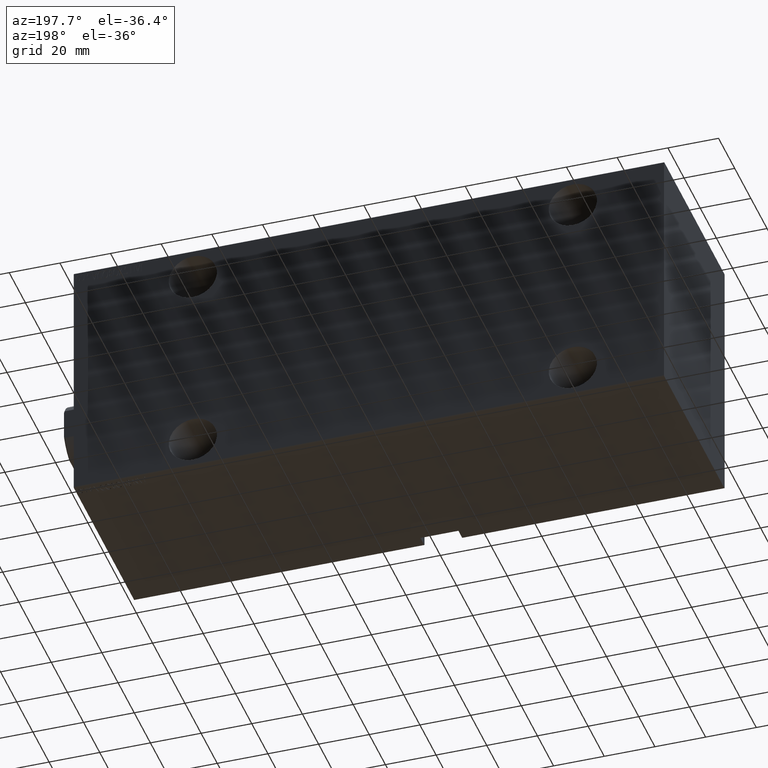
[diagram: clean part render]
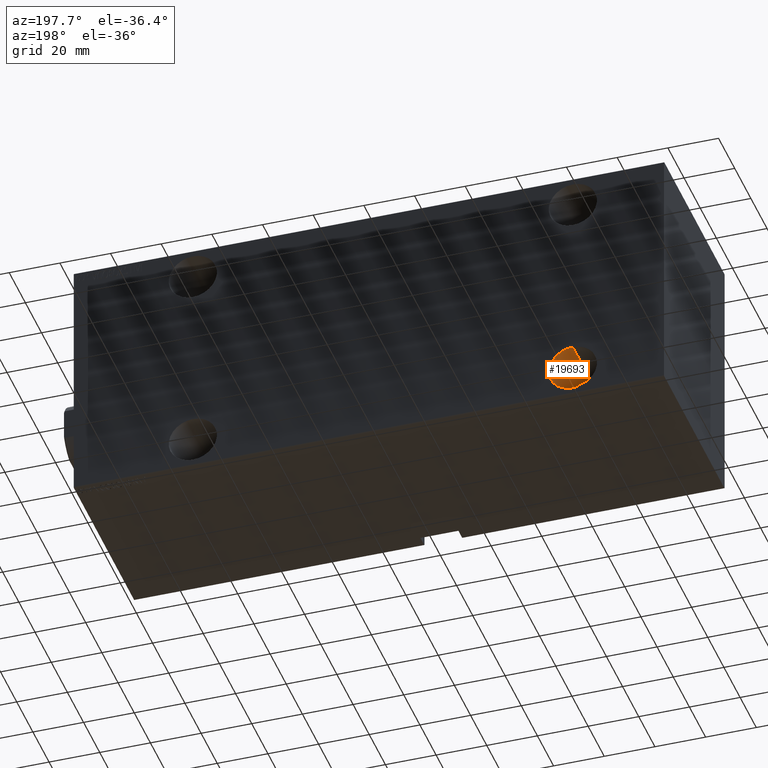
[diagram: same view with one face highlighted and labeled with its STEP entity id]
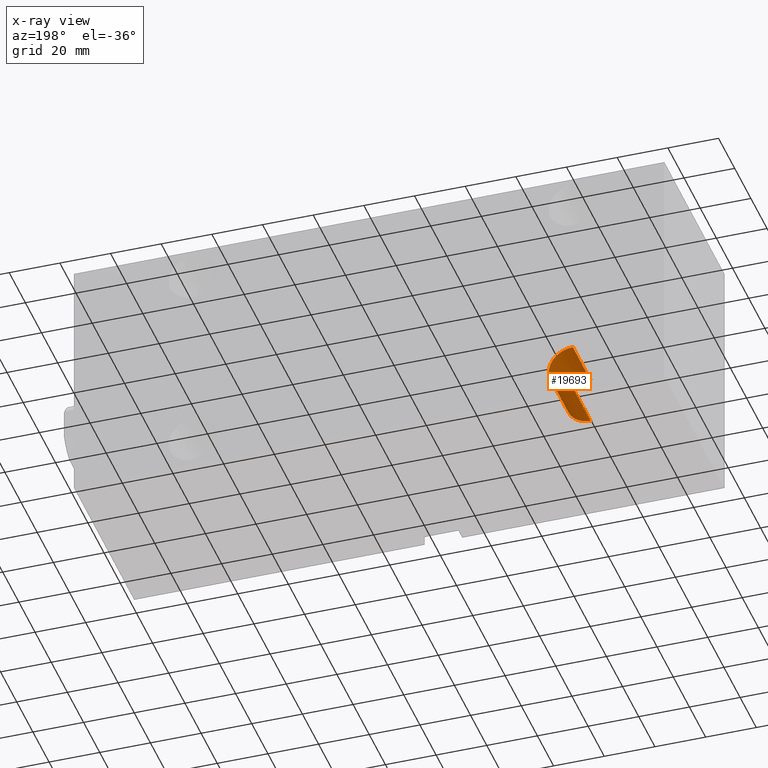
[diagram: x-ray of the same camera — body ghosted, the highlighted face saturated]
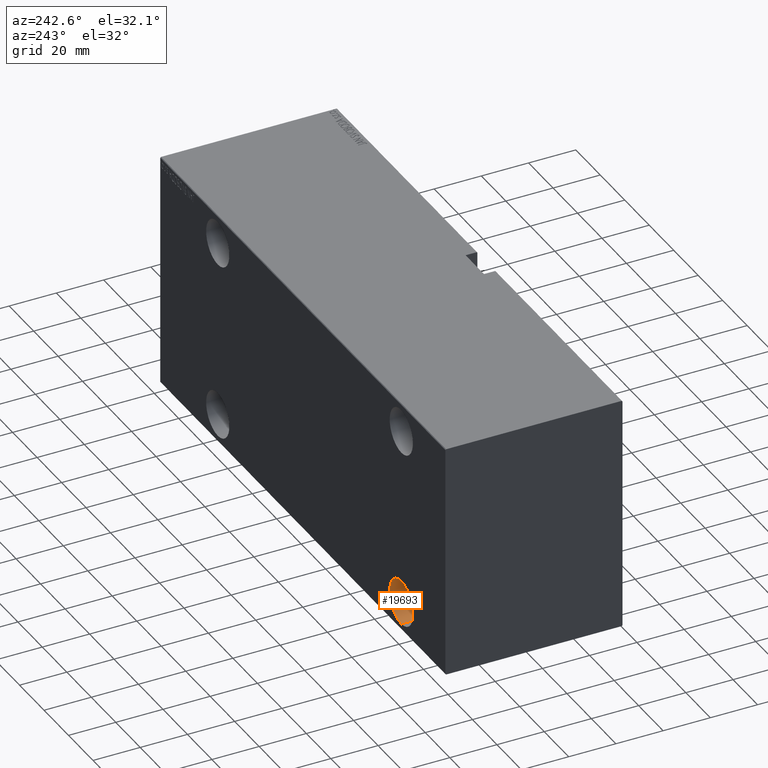
[diagram: same view with one face highlighted and labeled with its STEP entity id]
A machine part, auxiliary view. The second image highlights one B-rep face of the part: STEP entity #19693.
The next image is the same camera in x-ray: the body ghosted, the highlighted face saturated — about 0% of this face is hidden behind the body in this view.
A second angle (auxiliary view) of the same face is appended — the face is thin or edge-on in the first view.
In plain terms, the highlighted cylindrical surface (edge-blend (fillet) strip) has radius 9.5 mm, axis along (0, 1, -0).
Its self-contained STEP definition (entity closure, byte-faithful):
#1493 = VECTOR ( 'NONE', #3848, 1000.000000000000000 ) ;
#1583 = AXIS2_PLACEMENT_3D ( 'NONE', #6476, #19477, #13860 ) ;
#1640 = CARTESIAN_POINT ( 'NONE',  ( 197.0000000000000568, -37.50000000000000000, -28.49999999999999645 ) ) ;
#1989 = ORIENTED_EDGE ( 'NONE', *, *, #26711, .T. ) ;
#2957 = CARTESIAN_POINT ( 'NONE',  ( 197.0000000000000568, -15.50000000000000000, -38.00000000000000711 ) ) ;
#3263 = EDGE_CURVE ( 'NONE', #7591, #5970, #5192, .T. ) ;
#3848 = DIRECTION ( 'NONE',  ( -0.000000000000000000, -1.000000000000000000, -0.000000000000000000 ) ) ;
#5192 = LINE ( 'NONE', #40991, #38104 ) ;
#5970 = VERTEX_POINT ( 'NONE', #1640 ) ;
#5991 = DIRECTION ( 'NONE',  ( 0.000000000000000000, 0.000000000000000000, -1.000000000000000000 ) ) ;
#6406 = DIRECTION ( 'NONE',  ( -0.000000000000000000, -1.000000000000000000, -0.000000000000000000 ) ) ;
#6445 = CARTESIAN_POINT ( 'NONE',  ( 197.0000000000000568, -15.50000000000000000, -47.50000000000001421 ) ) ;
#6476 = CARTESIAN_POINT ( 'NONE',  ( 197.0000000000000568, -37.50000000000000000, -38.00000000000000711 ) ) ;
#6765 = CARTESIAN_POINT ( 'NONE',  ( 197.0000000000000568, -37.50000000000000000, -47.50000000000001421 ) ) ;
#7591 = VERTEX_POINT ( 'NONE', #36207 ) ;
#9188 = CIRCLE ( 'NONE', #1583, 9.500000000000008882 ) ;
#9450 = CARTESIAN_POINT ( 'NONE',  ( 197.0000000000000568, -15.50000000000000000, -38.00000000000000711 ) ) ;
#9628 = EDGE_CURVE ( 'NONE', #7591, #40333, #24791, .T. ) ;
#9881 = DIRECTION ( 'NONE',  ( 0.000000000000000000, 0.000000000000000000, -1.000000000000000000 ) ) ;
#11282 = DIRECTION ( 'NONE',  ( -0.000000000000000000, -1.000000000000000000, -0.000000000000000000 ) ) ;
#13860 = DIRECTION ( 'NONE',  ( 0.000000000000000000, 0.000000000000000000, -1.000000000000000000 ) ) ;
#18116 = ORIENTED_EDGE ( 'NONE', *, *, #9628, .F. ) ;
#19477 = DIRECTION ( 'NONE',  ( 0.000000000000000000, -1.000000000000000000, 0.000000000000000000 ) ) ;
#19693 = ADVANCED_FACE ( 'NONE', ( #35693 ), #29391, .F. ) ;
#20879 = ORIENTED_EDGE ( 'NONE', *, *, #3263, .T. ) ;
#22917 = EDGE_CURVE ( 'NONE', #40333, #36932, #23560, .T. ) ;
#23560 = LINE ( 'NONE', #36590, #1493 ) ;
#24791 = CIRCLE ( 'NONE', #40758, 9.500000000000008882 ) ;
#25376 = EDGE_LOOP ( 'NONE', ( #18116, #20879, #1989, #26600 ) ) ;
#26600 = ORIENTED_EDGE ( 'NONE', *, *, #22917, .F. ) ;
#26711 = EDGE_CURVE ( 'NONE', #5970, #36932, #9188, .T. ) ;
#29088 = AXIS2_PLACEMENT_3D ( 'NONE', #9450, #6406, #9881 ) ;
#29391 = CYLINDRICAL_SURFACE ( 'NONE', #29088, 9.500000000000008882 ) ;
#33085 = DIRECTION ( 'NONE',  ( 0.000000000000000000, -1.000000000000000000, 0.000000000000000000 ) ) ;
#35693 = FACE_OUTER_BOUND ( 'NONE', #25376, .T. ) ;
#36207 = CARTESIAN_POINT ( 'NONE',  ( 197.0000000000000568, -15.50000000000000000, -28.49999999999999645 ) ) ;
#36590 = CARTESIAN_POINT ( 'NONE',  ( 197.0000000000000568, -15.50000000000000000, -47.50000000000001421 ) ) ;
#36932 = VERTEX_POINT ( 'NONE', #6765 ) ;
#38104 = VECTOR ( 'NONE', #11282, 1000.000000000000000 ) ;
#40333 = VERTEX_POINT ( 'NONE', #6445 ) ;
#40758 = AXIS2_PLACEMENT_3D ( 'NONE', #2957, #33085, #5991 ) ;
#40991 = CARTESIAN_POINT ( 'NONE',  ( 197.0000000000000568, -15.50000000000000000, -28.49999999999999645 ) ) ;